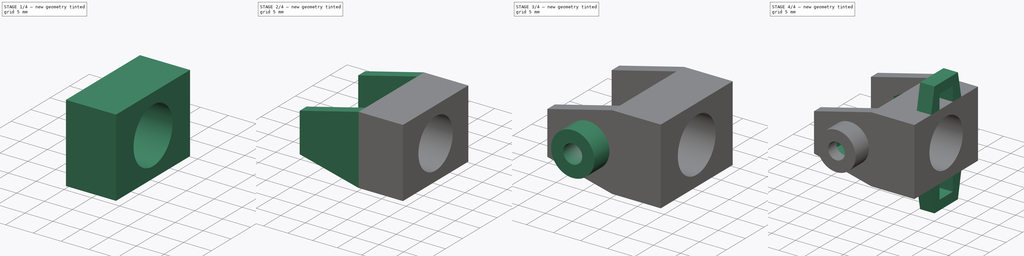
[diagram: build sequence overview — one tinted view per stage of 4, left to right]
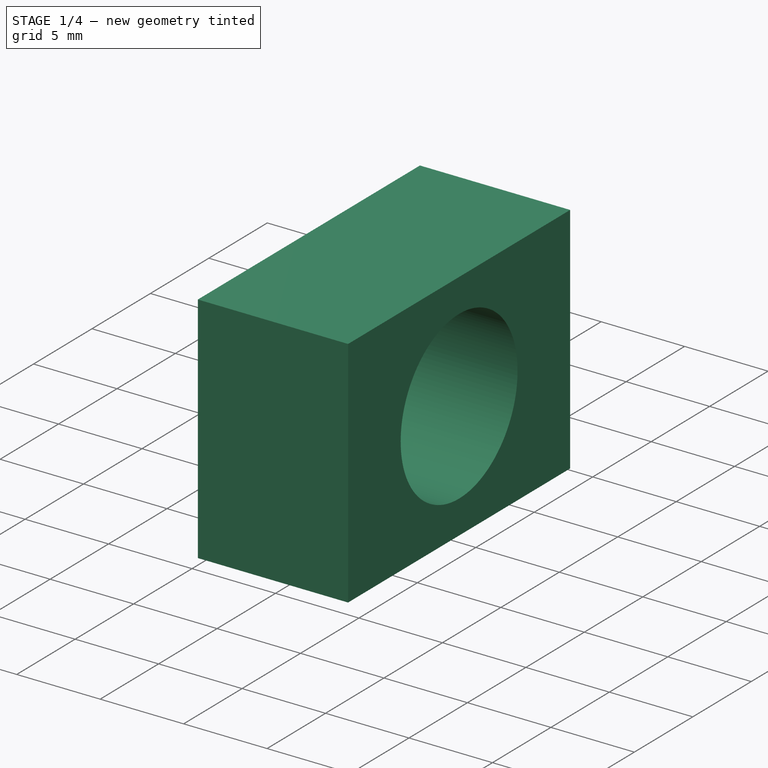
[diagram: stage 1 of 4 — iso view after this stage's code; geometry added in this stage tinted green]
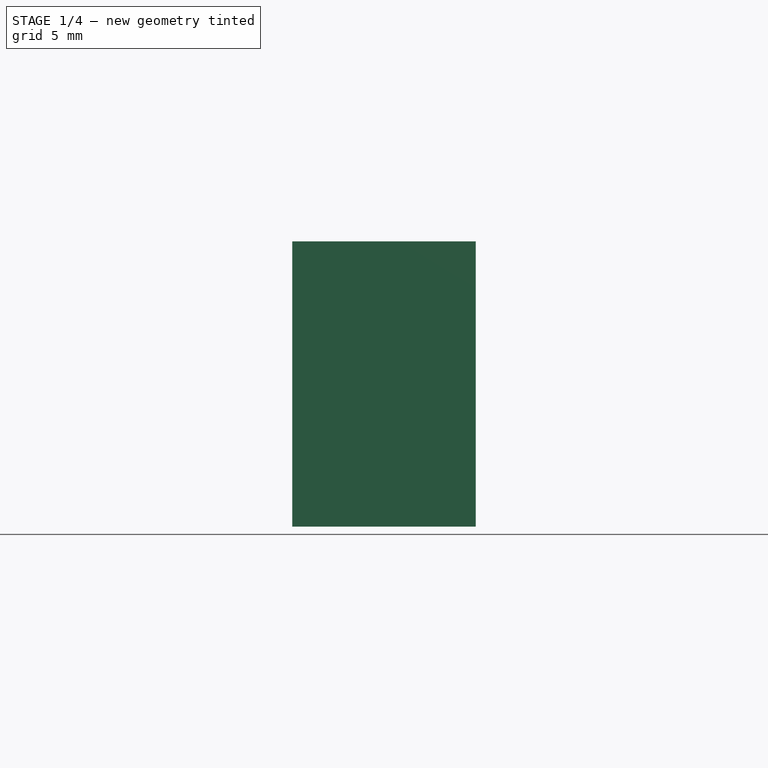
[diagram: stage 1 of 4 — front view after this stage's code; geometry added in this stage tinted green]
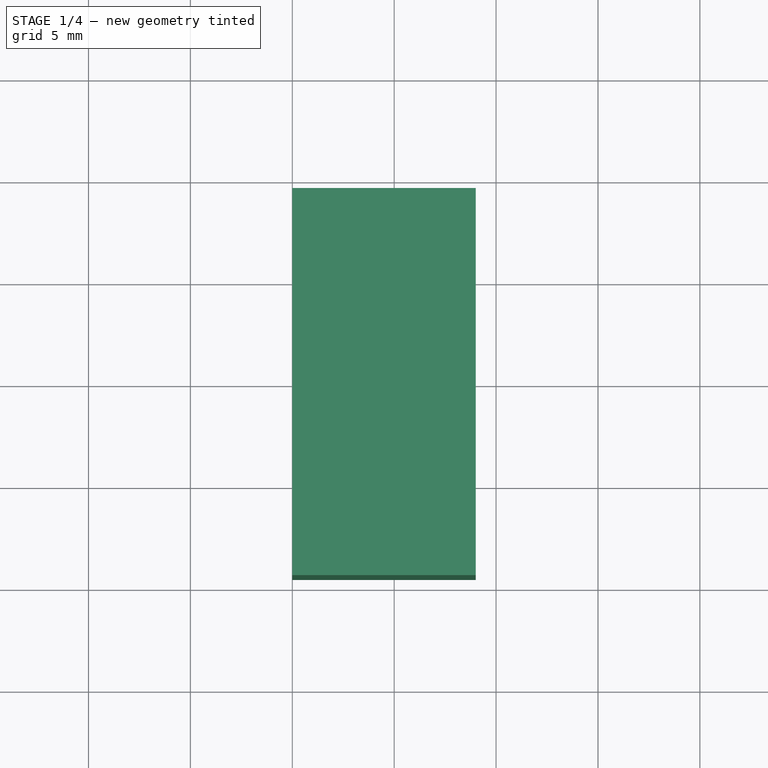
[diagram: stage 1 of 4 — top view after this stage's code; geometry added in this stage tinted green]
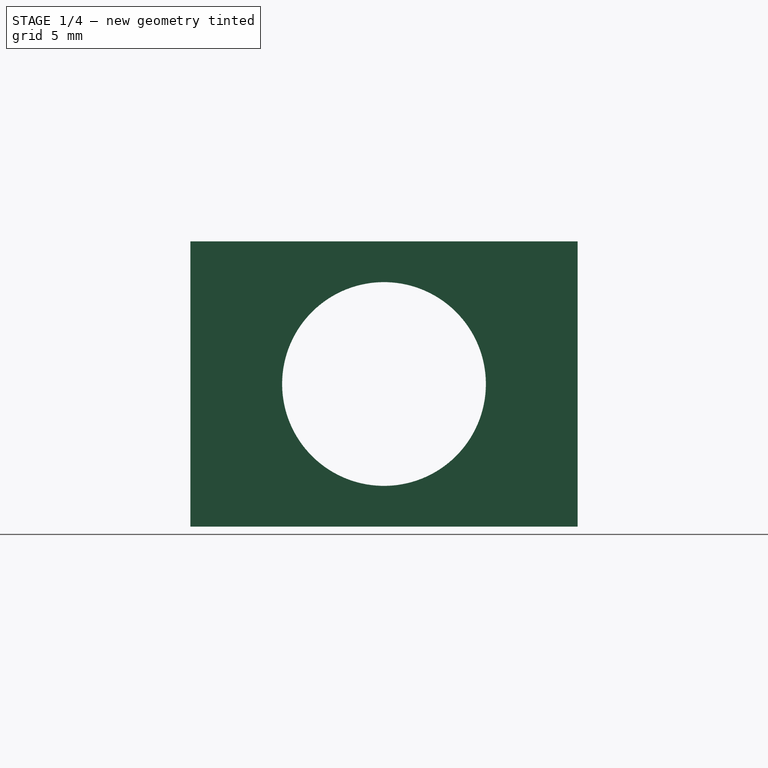
[diagram: stage 1 of 4 — right view after this stage's code; geometry added in this stage tinted green]
FCSTD DOCUMENT  (FreeCAD 0.19R)
Label: fpv_camera_holder
License: All rights reserved
LicenseURL: http://en.wikipedia.org/wiki/All_rights_reserved
objects: Sketcher::SketchObject×9, PartDesign::Pad×5, PartDesign::Pocket×4, PartDesign::CoordinateSystem×1, PartDesign::Plane×1, PartDesign::Body×1
note: 30 computed .brp shape members not serialized (recipe doc carries the construction recipe); baked Part::Feature solids carry a one-line shape summary decoded from their .brp

FEATURE [Sketcher::SketchObject] Sketch
  FullyConstrained = true
  MapMode = 5
  Placement = pos=(0,0,0) rot=(0.57735,0.57735,0.57735;2.0944rad)
  Support = -> [YZ_Plane]
  sketch-geometry (4):
    g0: LineSegment StartX=-9.5 StartY=7 StartZ=0 EndX=9.5 EndY=7 EndZ=0
    g1: LineSegment StartX=9.5 StartY=7 StartZ=0 EndX=9.5 EndY=-7 EndZ=0
    g2: LineSegment StartX=9.5 StartY=-7 StartZ=0 EndX=-9.5 EndY=-7 EndZ=0
    g3: LineSegment StartX=-9.5 StartY=-7 StartZ=0 EndX=-9.5 EndY=7 EndZ=0
  constraints (10):
    c: Coincident(g0,g1)
    c: Coincident(g1,g2)
    c: Coincident(g2,g3)
    c: Coincident(g3,g0)
    c: Horizontal(g0)
    c: Vertical(g3)
    c: DistanceX(g2,g2) = 19
    c: DistanceY(g1,g1) = 14
    c: Symmetric(g1,g0,g-1)
    c: Symmetric(g1,g2,g-2)
FEATURE [PartDesign::Pad] Pad
  Direction = (1,1,1)
  Length = 9
  Length2 = 100
  Placement = pos=(0,0,0) rot=(0.57735,0.57735,0.57735;2.0944rad)
  Profile = -> Sketch
  Type = 0
FEATURE [Sketcher::SketchObject] Sketch001
  FullyConstrained = true
  MapMode = 5
  Placement = pos=(9,-2e-15,2e-15) rot=(0.57735,0.57735,0.57735;2.0944rad)
  Support = -> [Pad]
  sketch-geometry (1):
    g0: Circle CenterX=0 CenterY=0 CenterZ=0 NormalX=0 NormalY=0 NormalZ=1 AngleXU=0 Radius=5
  constraints (2):
    c: Coincident(g0,g-1)
    c: Diameter(g0) = 10
FEATURE [PartDesign::Pocket] Pocket
  BaseFeature = -> Pad
  Length = 9
  Length2 = 100
  Placement = pos=(0,0,0) rot=(0.57735,0.57735,0.57735;2.0944rad)
  Profile = -> Sketch001
  Type = 0
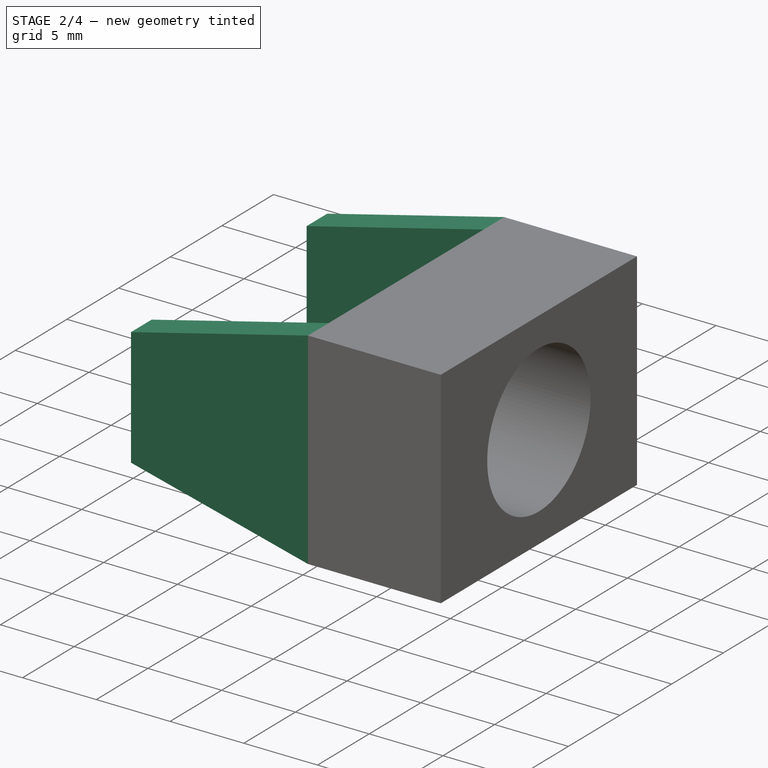
[diagram: stage 2 of 4 — iso view after this stage's code; geometry added in this stage tinted green]
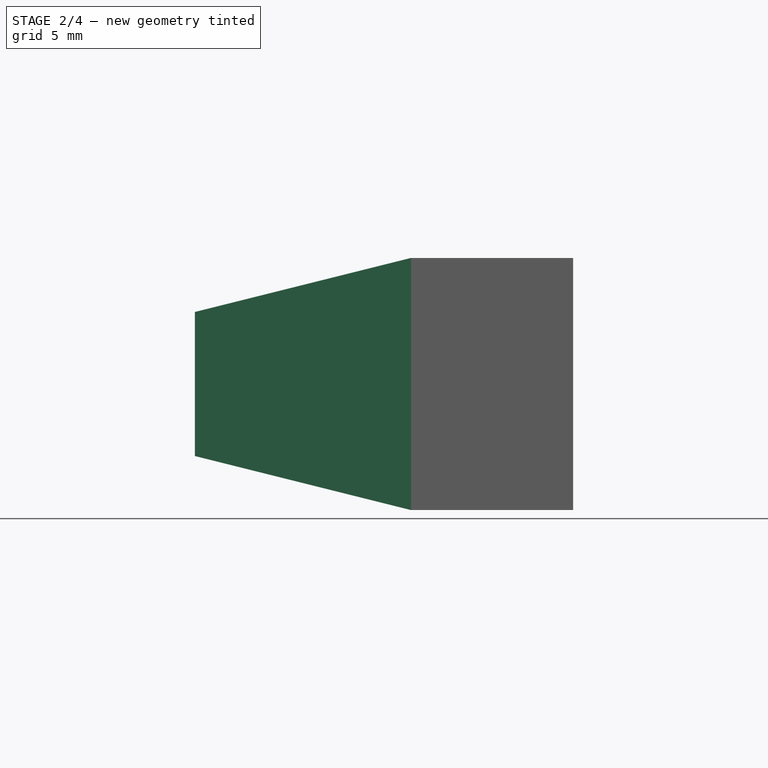
[diagram: stage 2 of 4 — front view after this stage's code; geometry added in this stage tinted green]
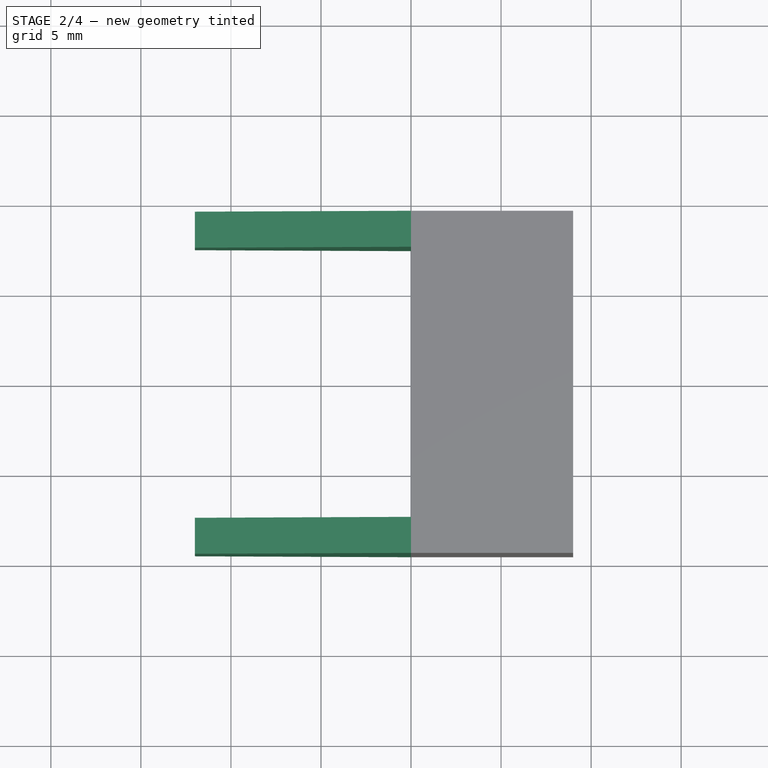
[diagram: stage 2 of 4 — top view after this stage's code; geometry added in this stage tinted green]
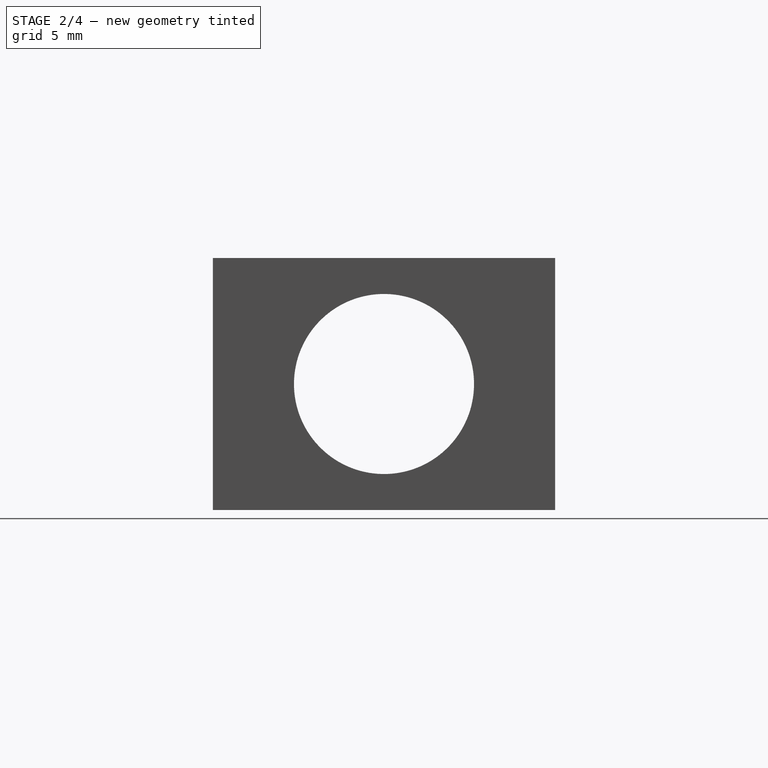
[diagram: stage 2 of 4 — right view after this stage's code; geometry added in this stage tinted green]
FEATURE [Sketcher::SketchObject] Sketch002
  ExternalGeometry = -> [Pocket]
  FullyConstrained = true
  MapMode = 5
  Placement = pos=(0,0,0) rot=(0.57735,0.57735,-0.57735;4.18879rad)
  Support = -> [Pocket]
  sketch-geometry (8):
    g0: LineSegment StartX=-9.5 StartY=7 StartZ=0 EndX=-7.5 EndY=7 EndZ=0
    g1: LineSegment StartX=-7.5 StartY=7 StartZ=0 EndX=-7.5 EndY=-7 EndZ=0
    g2: LineSegment StartX=-7.5 StartY=-7 StartZ=0 EndX=-9.5 EndY=-7 EndZ=0
    g3: LineSegment StartX=-9.5 StartY=-7 StartZ=0 EndX=-9.5 EndY=7 EndZ=0
    g4: LineSegment StartX=9.5 StartY=7 StartZ=0 EndX=7.5 EndY=7 EndZ=0
    g5: LineSegment StartX=7.5 StartY=7 StartZ=0 EndX=7.5 EndY=-7 EndZ=0
    g6: LineSegment StartX=7.5 StartY=-7 StartZ=0 EndX=9.5 EndY=-7 EndZ=0
    g7: LineSegment StartX=9.5 StartY=-7 StartZ=0 EndX=9.5 EndY=7 EndZ=0
  constraints (20):
    c: Coincident(g0,g1)
    c: Coincident(g1,g2)
    c: Coincident(g2,g3)
    c: Coincident(g3,g0)
    c: Horizontal(g0)
    c: Horizontal(g2)
    c: Vertical(g1)
    c: Coincident(g0,g-4)
    c: Coincident(g2,g-4)
    c: Coincident(g4,g5)
    c: Coincident(g5,g6)
    c: Coincident(g6,g7)
    c: Coincident(g7,g4)
    c: Horizontal(g4)
    c: Horizontal(g6)
    c: Vertical(g5)
    c: Coincident(g4,g-3)
    c: Coincident(g6,g-3)
    c: Equal(g0,g4)
    c: DistanceX(g4,g4) = 2
FEATURE [PartDesign::Pad] Pad001
  BaseFeature = -> Pocket
  Direction = (1,1,1)
  Length = 12
  Length2 = 100
  Placement = pos=(0,0,0) rot=(0.57735,0.57735,0.57735;2.0944rad)
  Profile = -> Sketch002
  Type = 0
FEATURE [Sketcher::SketchObject] Sketch003
  ExternalGeometry = -> [Pad001]
  FullyConstrained = true
  MapMode = 5
  Placement = pos=(-2.1e-15,-9.5,-2e-16) rot=(0.57735,0.57735,-0.57735;2.0944rad)
  Support = -> [Pad001]
  sketch-geometry (6):
    g0: LineSegment StartX=-4 StartY=-12 StartZ=0 EndX=-7 EndY=-12 EndZ=0
    g1: LineSegment StartX=-7 StartY=-12 StartZ=0 EndX=-7 EndY=0 EndZ=0
    g2: LineSegment StartX=-7 StartY=0 StartZ=0 EndX=-4 EndY=-12 EndZ=0
    g3: LineSegment StartX=7 StartY=0 StartZ=0 EndX=4 EndY=-12 EndZ=0
    g4: LineSegment StartX=4 StartY=-12 StartZ=0 EndX=7 EndY=-12 EndZ=0
    g5: LineSegment StartX=7 StartY=-12 StartZ=0 EndX=7 EndY=0 EndZ=0
  constraints (15):
    c: PointOnObject(g0,g-3)
    c: Coincident(g0,g-5)
    c: Coincident(g1,g0)
    c: Coincident(g1,g-5)
    c: Coincident(g2,g1)
    c: Coincident(g2,g0)
    c: Coincident(g3,g-4)
    c: PointOnObject(g3,g-3)
    c: Coincident(g4,g3)
    c: Coincident(g4,g-4)
    c: Coincident(g5,g4)
    c: PointOnObject(g5,g-1)
    c: Vertical(g5)
    c: Equal(g4,g0)
    c: DistanceX(g0,g0) = 3
FEATURE [PartDesign::Pocket] Pocket001
  BaseFeature = -> Pad001
  Length = 5
  Length2 = 100
  Placement = pos=(0,0,0) rot=(0.57735,0.57735,0.57735;2.0944rad)
  Profile = -> Sketch003
  Type = 1
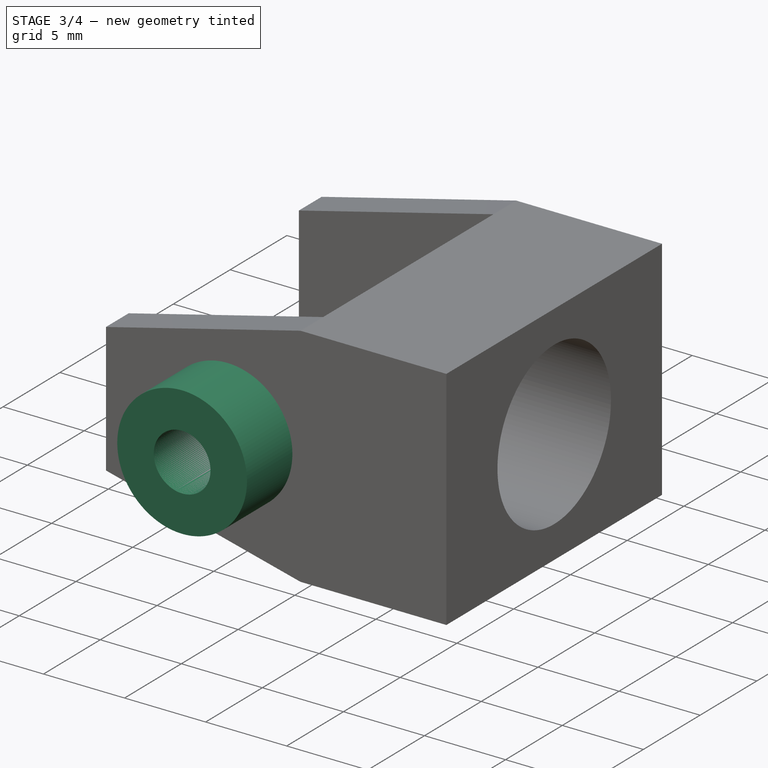
[diagram: stage 3 of 4 — iso view after this stage's code; geometry added in this stage tinted green]
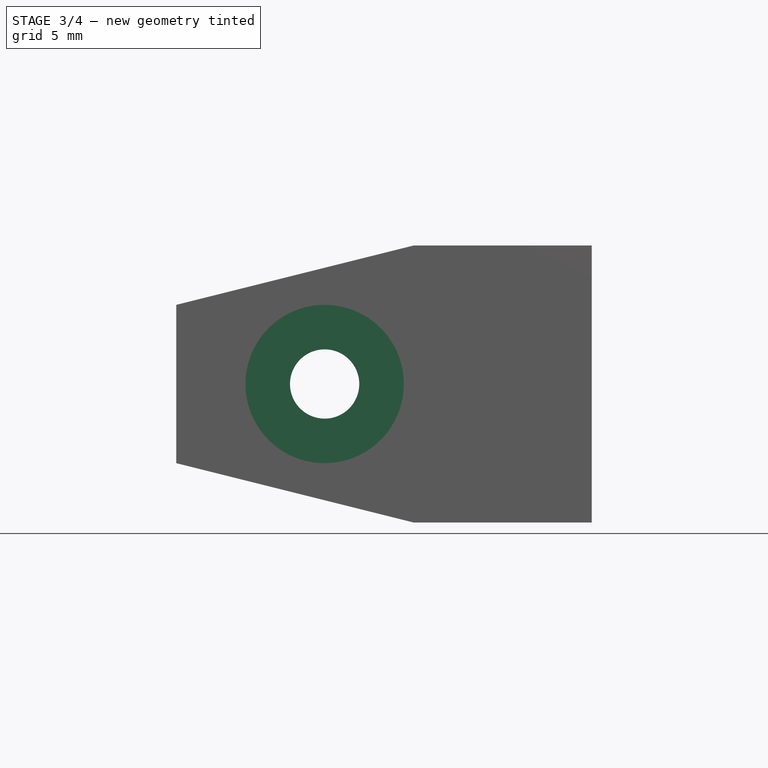
[diagram: stage 3 of 4 — front view after this stage's code; geometry added in this stage tinted green]
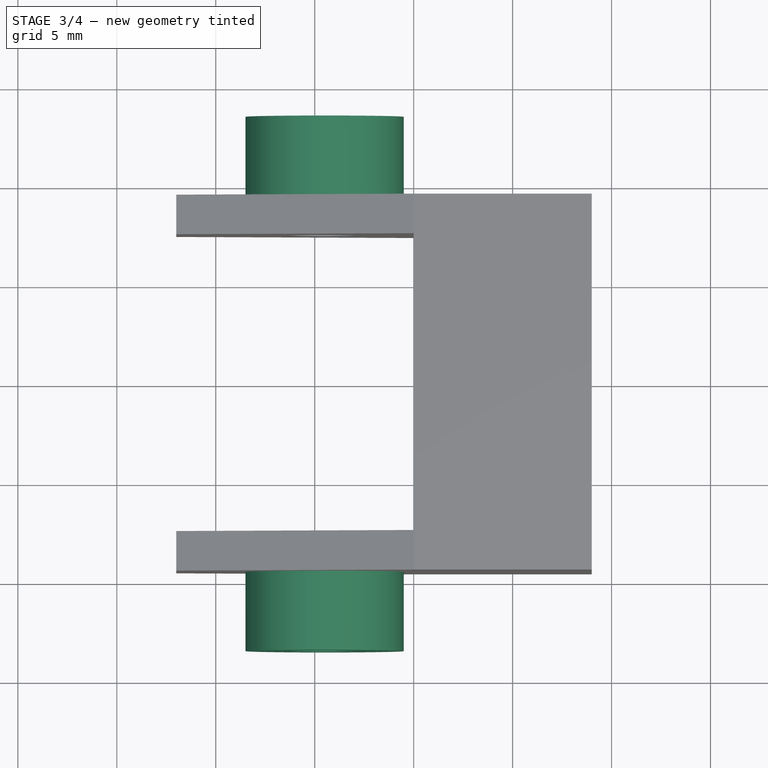
[diagram: stage 3 of 4 — top view after this stage's code; geometry added in this stage tinted green]
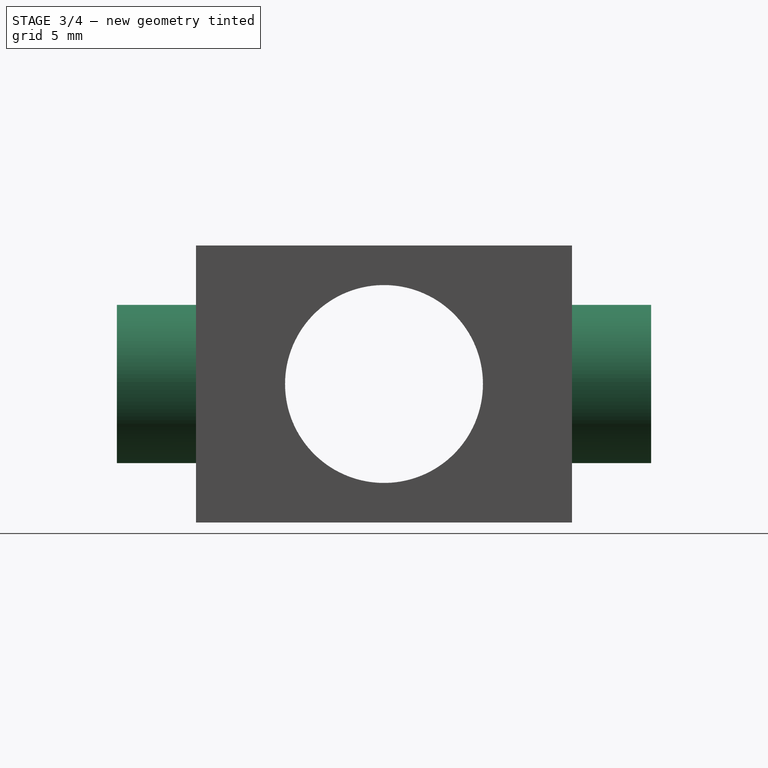
[diagram: stage 3 of 4 — right view after this stage's code; geometry added in this stage tinted green]
FEATURE [Sketcher::SketchObject] Sketch004
  FullyConstrained = true
  MapMode = 5
  Placement = pos=(-6.3e-15,-9.5,2.1e-15) rot=(-0.57735,-0.57735,0.57735;4.18879rad)
  Support = -> [Pocket001]
  sketch-geometry (1):
    g0: Circle CenterX=0 CenterY=-4.5 CenterZ=0 NormalX=0 NormalY=0 NormalZ=1 AngleXU=0 Radius=4
  constraints (3):
    c: PointOnObject(g0,g-2)
    c: Diameter(g0) = 8
    c: DistanceY(g0,g-1) = 4.5
FEATURE [PartDesign::Pad] Pad002
  BaseFeature = -> Pocket001
  Direction = (1,1,1)
  Length = 4
  Length2 = 100
  Placement = pos=(0,0,0) rot=(0.57735,0.57735,0.57735;2.0944rad)
  Profile = -> Sketch004
  Type = 0
FEATURE [Sketcher::SketchObject] Sketch005
  FullyConstrained = true
  MapMode = 5
  Placement = pos=(7.3e-15,9.5,-2.1e-15) rot=(0.57735,0.57735,0.57735;4.18879rad)
  Support = -> [Pad002]
  sketch-geometry (1):
    g0: Circle CenterX=0 CenterY=-4.5 CenterZ=0 NormalX=0 NormalY=0 NormalZ=1 AngleXU=0 Radius=4
  constraints (3):
    c: PointOnObject(g0,g-2)
    c: Diameter(g0) = 8
    c: DistanceY(g0,g-1) = 4.5
FEATURE [PartDesign::Pad] Pad003
  BaseFeature = -> Pad002
  Direction = (1,1,1)
  Length = 4
  Length2 = 100
  Placement = pos=(0,0,0) rot=(0.57735,0.57735,0.57735;2.0944rad)
  Profile = -> Sketch005
  Type = 0
FEATURE [PartDesign::CoordinateSystem] LCS_1
  AttacherType = Attacher::AttachEngine3D
  AttachmentOffset = pos=(0,0,0.5) rot=(0,0,1;0rad)
  MapMode = 11
  Placement = pos=(-4.5,10,-2.3e-15) rot=(-1,0,0;1.5708rad)
  Support = -> [Sketch005]
FEATURE [Sketcher::SketchObject] Sketch006
  ExternalGeometry = -> [Pad003]
  FullyConstrained = true
  MapMode = 5
  Placement = pos=(1.19e-14,13.5,-2e-15) rot=(0.57735,0.57735,0.57735;4.18879rad)
  Support = -> [Pad003]
  sketch-geometry (1):
    g0: Circle CenterX=0 CenterY=-4.5 CenterZ=0 NormalX=0 NormalY=0 NormalZ=1 AngleXU=0 Radius=1.75
  constraints (2):
    c: Diameter(g0) = 3.5
    c: Coincident(g0,g-3)
FEATURE [PartDesign::Pocket] Pocket002
  BaseFeature = -> Pad003
  Length = 5
  Length2 = 100
  Placement = pos=(0,0,0) rot=(0.57735,0.57735,0.57735;2.0944rad)
  Profile = -> Sketch006
  Type = 1
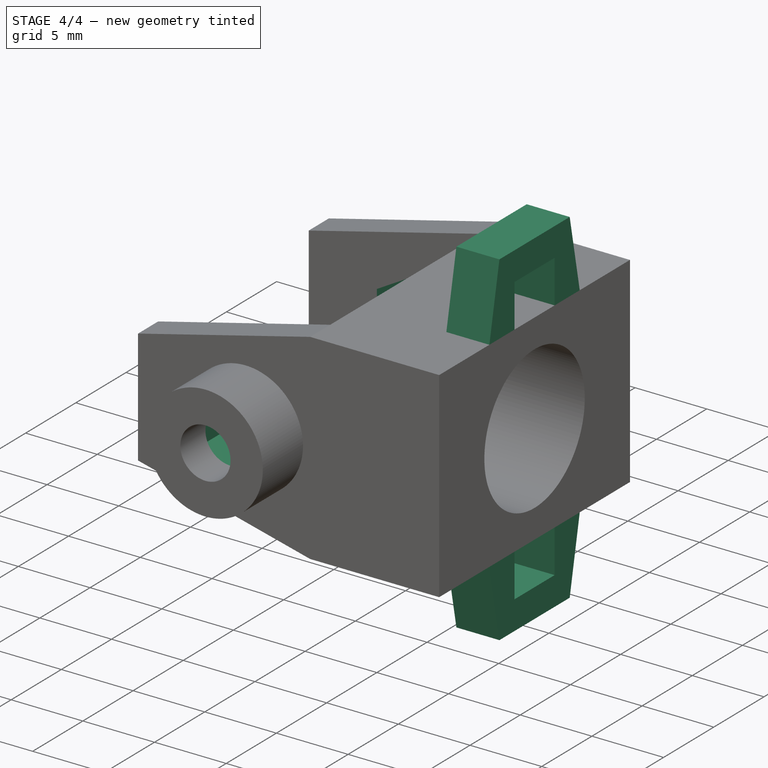
[diagram: stage 4 of 4 — iso view after this stage's code; geometry added in this stage tinted green]
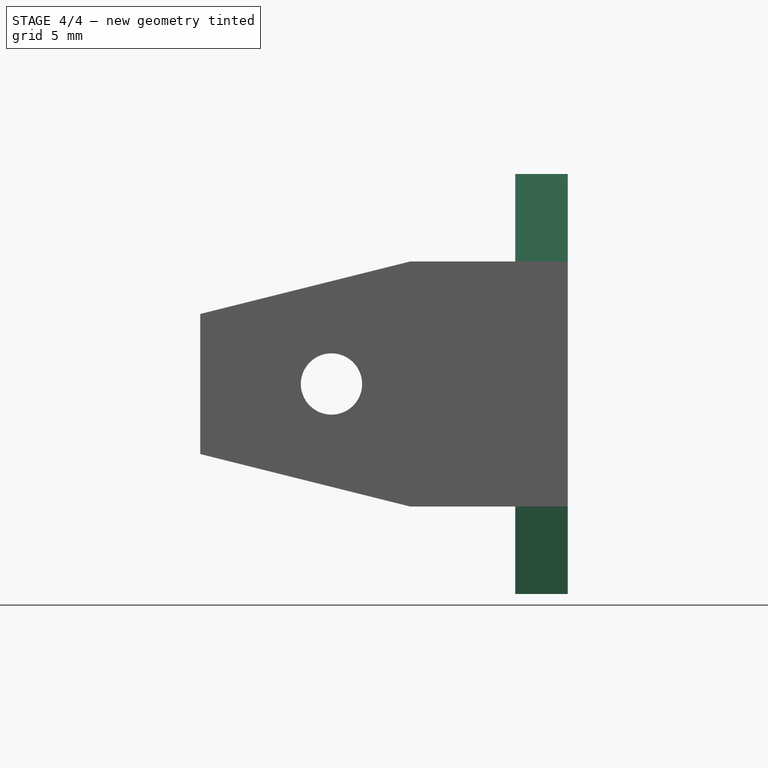
[diagram: stage 4 of 4 — front view after this stage's code; geometry added in this stage tinted green]
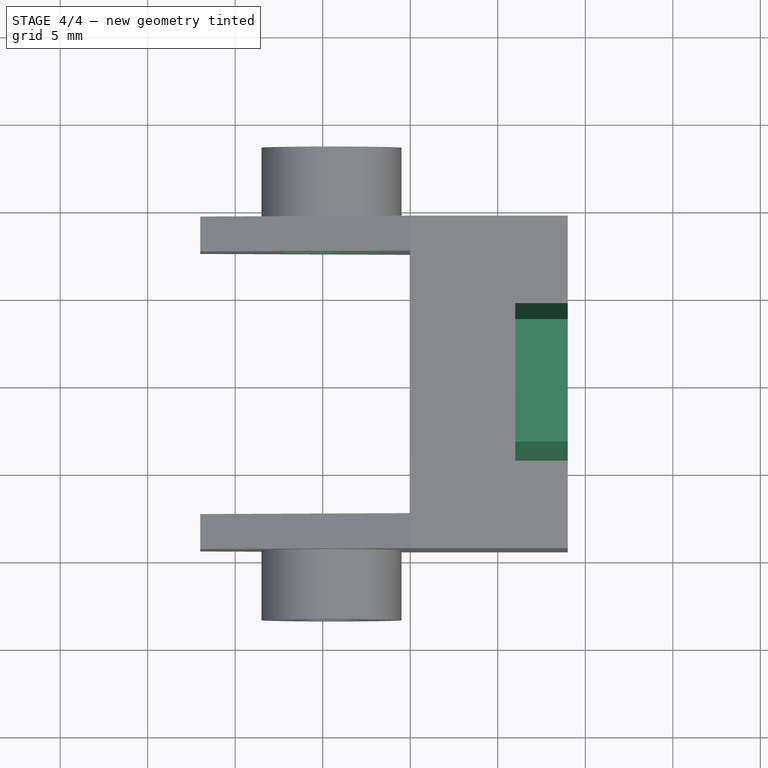
[diagram: stage 4 of 4 — top view after this stage's code; geometry added in this stage tinted green]
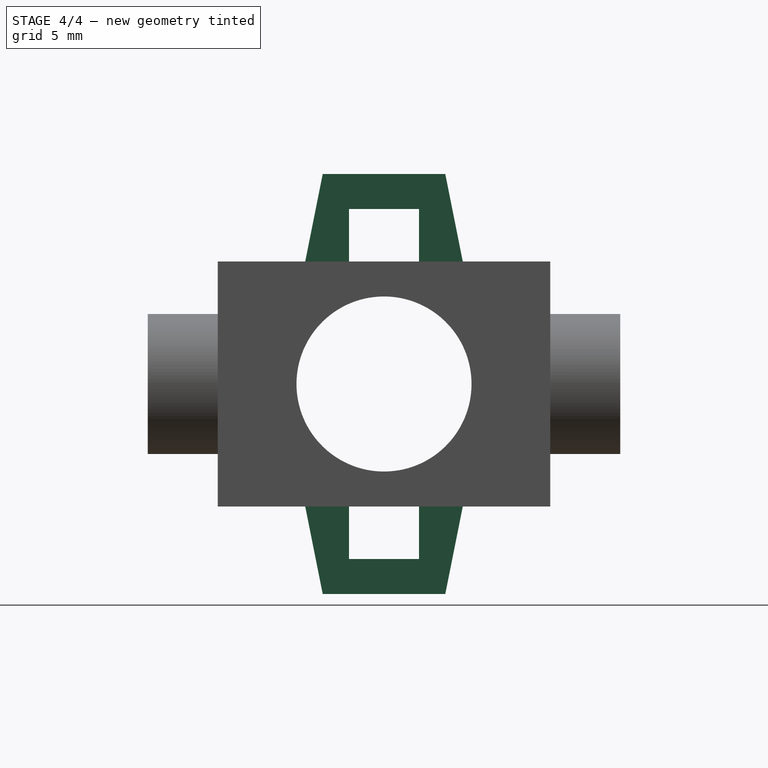
[diagram: stage 4 of 4 — right view after this stage's code; geometry added in this stage tinted green]
FEATURE [Sketcher::SketchObject] Sketch007
  ExternalGeometry = -> [Pocket002,Sketch005]
  FullyConstrained = true
  MapMode = 5
  Placement = pos=(0,0,0) rot=(1,0,0;1.5708rad)
  Support = -> [XZ_Plane]
  sketch-geometry (7):
    g0: LineSegment StartX=-1.75 StartY=-1.58771 StartZ=0 EndX=-1.75 EndY=1.58771 EndZ=0
    g1: LineSegment StartX=-1.75 StartY=1.58771 StartZ=0 EndX=-4.5 EndY=3.17543 EndZ=0
    g2: LineSegment StartX=-4.5 StartY=3.17543 StartZ=0 EndX=-7.25 EndY=1.58771 EndZ=0
    g3: LineSegment StartX=-7.25 StartY=1.58771 StartZ=0 EndX=-7.25 EndY=-1.58771 EndZ=0
    g4: LineSegment StartX=-7.25 StartY=-1.58771 StartZ=0 EndX=-4.5 EndY=-3.17543 EndZ=0
    g5: LineSegment StartX=-4.5 StartY=-3.17543 StartZ=0 EndX=-1.75 EndY=-1.58771 EndZ=0
    g6: Circle CenterX=-4.5 CenterY=-5.4e-15 CenterZ=0 NormalX=0 NormalY=0 NormalZ=1 AngleXU=0 Radius=3.17543
  constraints (16):
    c: Coincident(g0,g1)
    c: Coincident(g1,g2)
    c: Coincident(g2,g3)
    c: Coincident(g3,g4)
    c: Coincident(g4,g5)
    c: Coincident(g5,g0)
    c: Equal(g0, g1-g5) x5
    c: PointOnObject(g0,g6)
    c: PointOnObject(g1,g6)
    c: PointOnObject(g2,g6)
    c: PointOnObject(g3,g6)
    c: PointOnObject(g4,g6)
    c: PointOnObject(g5,g6)
    c: Vertical(g0)
    c: DistanceX(g2,g0) = 5.5
    c: Coincident(g6,g-4)
FEATURE [PartDesign::Pocket] Pocket003
  BaseFeature = -> Pocket002
  Length = 22
  Length2 = 100
  Midplane = true
  Placement = pos=(0,0,0) rot=(0.57735,0.57735,0.57735;2.0944rad)
  Profile = -> Sketch007
  Type = 0
FEATURE [PartDesign::Plane] DatumPlane
  Length = 60
  MapMode = 5
  Placement = pos=(9,-2e-15,8e-15) rot=(0.57735,0.57735,0.57735;2.0944rad)
  ResizeMode = 0
  Support = -> [Pocket003]
  Width = 60
FEATURE [Sketcher::SketchObject] Sketch008
  ExternalGeometry = -> [Pocket003]
  FullyConstrained = true
  MapMode = 5
  Placement = pos=(9,-2e-15,8e-15) rot=(0.57735,0.57735,0.57735;2.0944rad)
  Support = -> [DatumPlane]
  sketch-geometry (20):
    g0: LineSegment StartX=-4.5 StartY=7 StartZ=0 EndX=-3.5 EndY=12 EndZ=0
    g1: LineSegment StartX=-3.5 StartY=12 StartZ=0 EndX=3.5 EndY=12 EndZ=0
    g2: LineSegment StartX=3.5 StartY=12 StartZ=0 EndX=4.5 EndY=7 EndZ=0
    g3: LineSegment StartX=4.5 StartY=-7 StartZ=0 EndX=3.5 EndY=-12 EndZ=0
    g4: LineSegment StartX=3.5 StartY=-12 StartZ=0 EndX=-3.5 EndY=-12 EndZ=0
    g5: LineSegment StartX=-3.5 StartY=-12 StartZ=0 EndX=-4.5 EndY=-7 EndZ=0
    g6: LineSegment StartX=-2 StartY=7 StartZ=0 EndX=2 EndY=7 EndZ=0
    g7: LineSegment StartX=2 StartY=7 StartZ=0 EndX=2 EndY=10 EndZ=0
    g8: LineSegment StartX=2 StartY=10 StartZ=0 EndX=-2 EndY=10 EndZ=0
    g9: LineSegment StartX=-2 StartY=10 StartZ=0 EndX=-2 EndY=7 EndZ=0
    g10: LineSegment StartX=-2 StartY=-7 StartZ=0 EndX=2 EndY=-7 EndZ=0
    g11: LineSegment StartX=2 StartY=-7 StartZ=0 EndX=2 EndY=-10 EndZ=0
    g12: LineSegment StartX=2 StartY=-10 StartZ=0 EndX=-2 EndY=-10 EndZ=0
    g13: LineSegment StartX=-2 StartY=-10 StartZ=0 EndX=-2 EndY=-7 EndZ=0
    g14: LineSegment StartX=-4.5 StartY=-7 StartZ=0 EndX=-4.5 EndY=-6 EndZ=0
    g15: LineSegment StartX=-4.5 StartY=-6 StartZ=0 EndX=4.5 EndY=-6 EndZ=0
    g16: LineSegment StartX=4.5 StartY=-6 StartZ=0 EndX=4.5 EndY=-7 EndZ=0
    g17: LineSegment StartX=-4.5 StartY=7 StartZ=0 EndX=-4.5 EndY=6 EndZ=0
    g18: LineSegment StartX=-4.5 StartY=6 StartZ=0 EndX=4.5 EndY=6 EndZ=0
    g19: LineSegment StartX=4.5 StartY=6 StartZ=0 EndX=4.5 EndY=7 EndZ=0
  constraints (53):
    c: PointOnObject(g0,g-3)
    c: Coincident(g0,g1)
    c: Coincident(g1,g2)
    c: Coincident(g3,g4)
    c: Coincident(g4,g5)
    c: Symmetric(g3,g5,g-2)
    c: Symmetric(g4,g3,g-2)
    c: Symmetric(g3,g2,g-1)
    c: Symmetric(g0,g2,g-2)
    c: Symmetric(g0,g1,g-2)
    c: Equal(g1,g4)
    c: DistanceX(g1,g1) = 7
    c: Coincident(g6,g7)
    c: Coincident(g7,g8)
    c: Coincident(g8,g9)
    c: Coincident(g9,g6)
    c: Horizontal(g8)
    c: Vertical(g7)
    c: Vertical(g9)
    c: PointOnObject(g6,g-3)
    c: Coincident(g10,g11)
    c: Coincident(g11,g12)
    c: Coincident(g12,g13)
    c: Coincident(g13,g10)
    c: Horizontal(g12)
    c: Vertical(g11)
    c: Vertical(g13)
    c: PointOnObject(g10,g-4)
    c: Symmetric(g10,g10,g-2)
    c: Symmetric(g6,g6,g-2)
    c: Equal(g6,g10)
    c: Equal(g11,g7)
    c: DistanceX(g12,g12) = 4
    c: DistanceY(g11,g11) = 3
    c: DistanceY(g3,g11) = 2
    c: DistanceX(g5,g3) = 9
    c: DistanceY(g7,g1) = 2
    c: Coincident(g5,g14)
    c: Coincident(g14,g15)
    c: Horizontal(g15)
    c: Coincident(g15,g16)
    c: Coincident(g16,g3)
    c: Vertical(g16)
    c: Vertical(g14)
    c: DistanceY(g14,g14) = 1
    c: Coincident(g0,g17)
    c: Vertical(g17)
    c: Coincident(g17,g18)
    c: Horizontal(g18)
    c: Coincident(g18,g19)
    c: Coincident(g19,g2)
    c: Vertical(g19)
    c: DistanceY(g19,g19) = 1
FEATURE [PartDesign::Pad] Pad004
  BaseFeature = -> Pocket003
  Direction = (1,1,1)
  Length = 3
  Length2 = 100
  Placement = pos=(0,0,0) rot=(0.57735,0.57735,0.57735;2.0944rad)
  Profile = -> Sketch008
  Reversed = true
  Type = 0
FEATURE [PartDesign::Body] Body
  Group = -> [Sketch,Pad,Sketch001,Pocket,Sketch002,Pad001,Sketch003,Pocket001,Sketch004,Pad002,Sketch005,Pad003,LCS_1,Sketch006,Pocket002,Sketch007,Pocket003,DatumPlane,Sketch008,Pad004]
  Origin = -> Origin
  Tip = -> Pad004
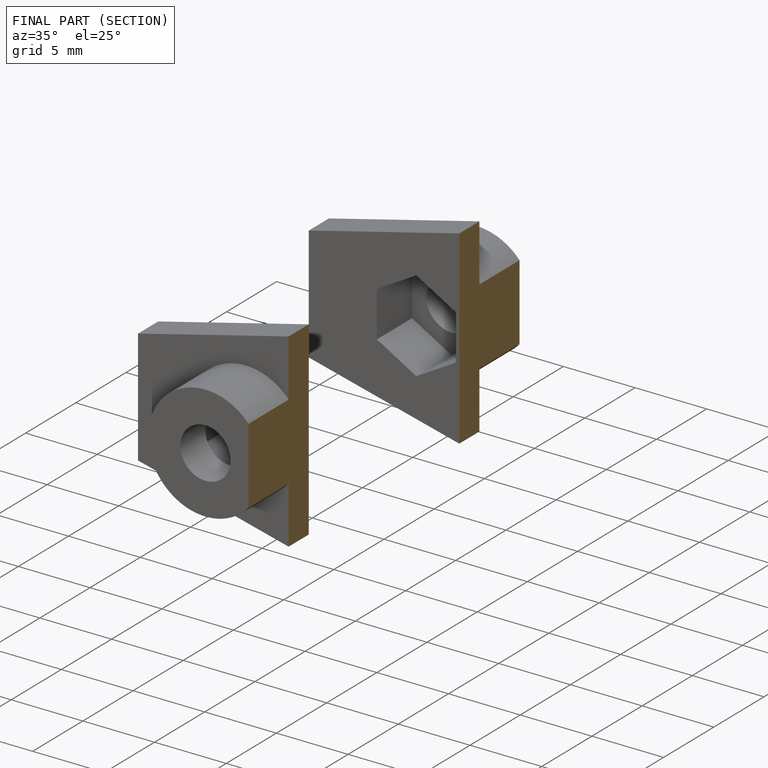
[diagram: finished part — half-section view (interior)]
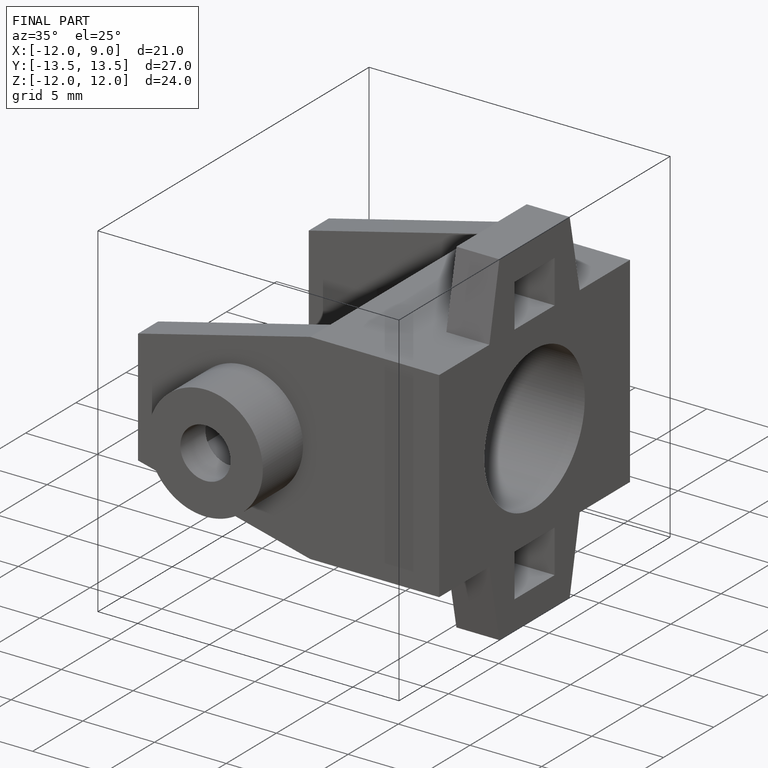
[diagram: finished part — iso view with bounding-box wireframe]
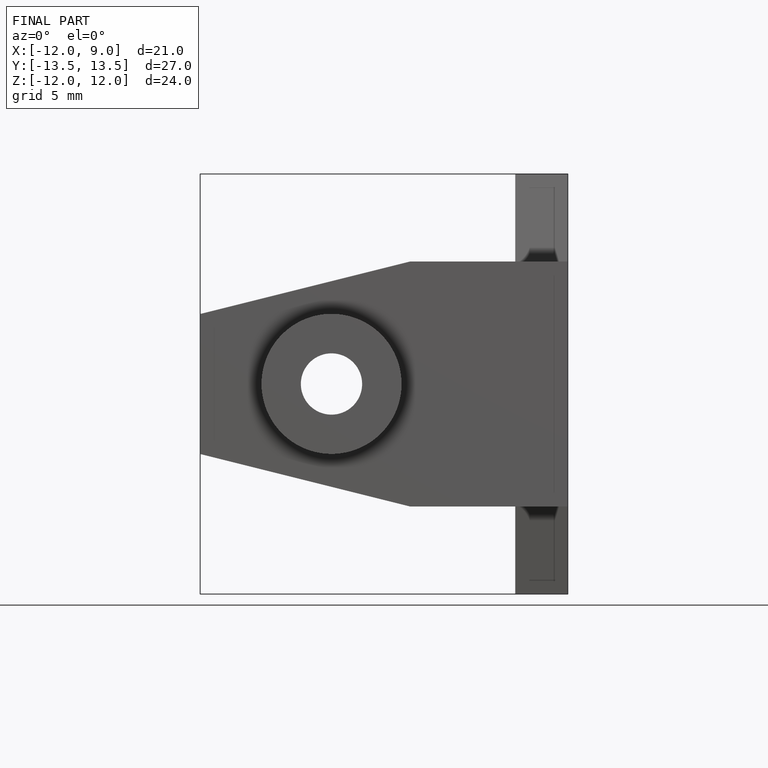
[diagram: finished part — front view with bounding-box wireframe]
